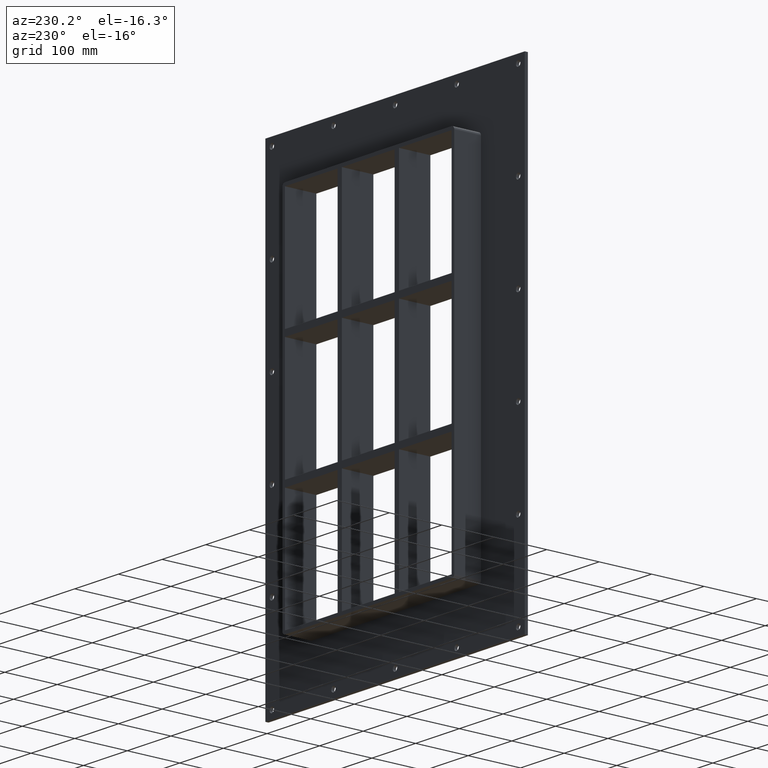
[diagram: clean part render]
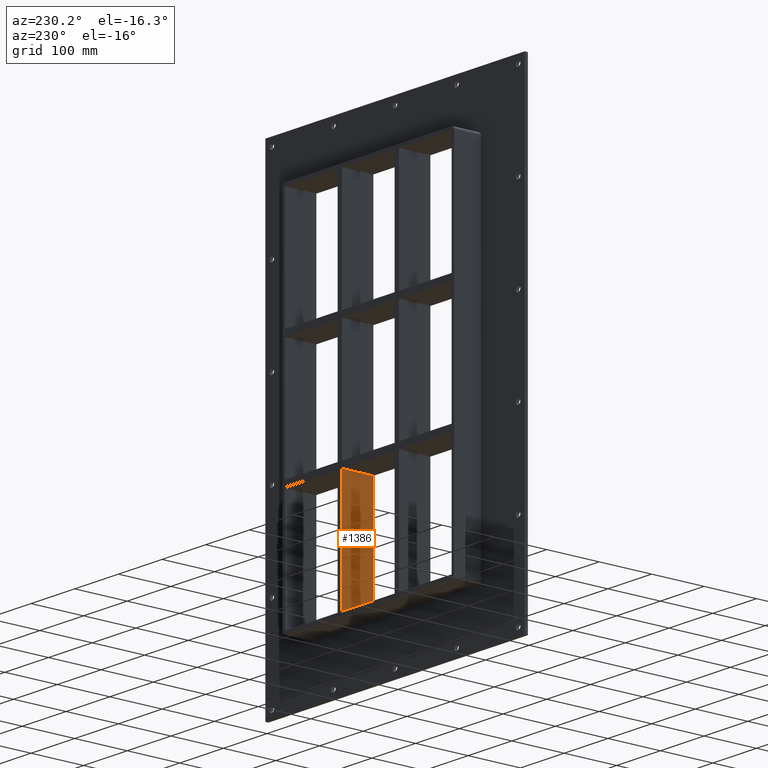
[diagram: same view with one face highlighted and labeled with its STEP entity id]
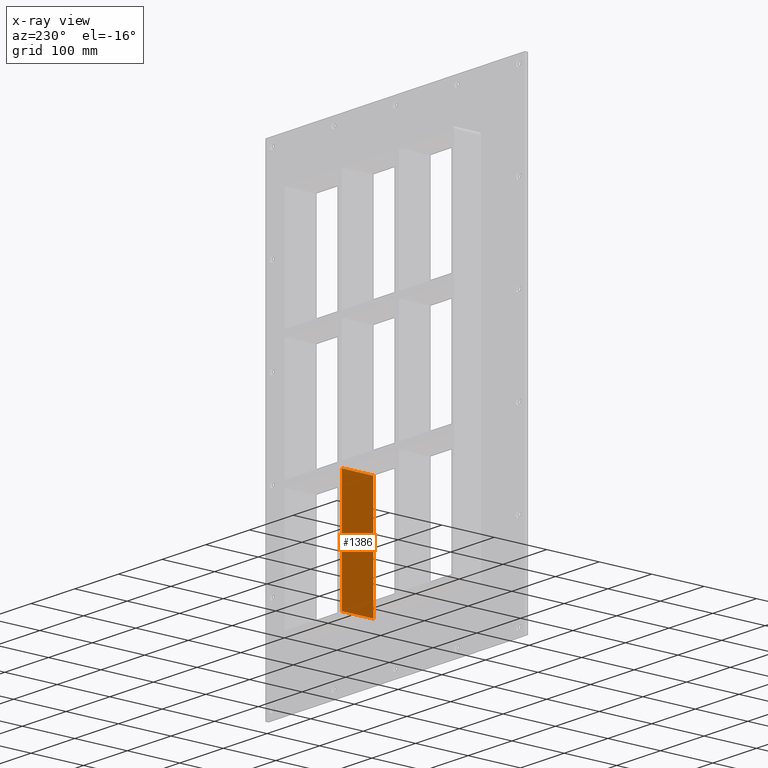
[diagram: x-ray of the same camera — body ghosted, the highlighted face saturated]
A machine part, auxiliary view. The second image highlights one B-rep face of the part: STEP entity #1386.
The next image is the same camera in x-ray: the body ghosted, the highlighted face saturated — about 0% of this face is hidden behind the body in this view.
In plain terms, the highlighted planar face has unit normal (-1, 0, 0).
Its self-contained STEP definition (entity closure, byte-faithful):
#1252=CARTESIAN_POINT('',(60.249999999998671,57.0,-339.00000000000006));
#1253=VERTEX_POINT('',#1252);
#1254=CARTESIAN_POINT('',(60.249999999998629,57.0,-121.00000000000932));
#1255=VERTEX_POINT('',#1254);
#1256=CARTESIAN_POINT('',(60.249999999998671,57.0,-339.00000000000006));
#1257=DIRECTION('',(0.0,0.0,1.0));
#1258=VECTOR('',#1257,217.99999999999073);
#1259=LINE('',#1256,#1258);
#1260=EDGE_CURVE('',#1253,#1255,#1259,.T.);
#1356=CARTESIAN_POINT('',(60.249999999998671,-3.0,-339.00000000000006));
#1357=DIRECTION('',(-1.0,0.0,0.0));
#1358=DIRECTION('',(0.0,0.0,1.0));
#1359=AXIS2_PLACEMENT_3D('',#1356,#1357,#1358);
#1360=PLANE('',#1359);
#1361=CARTESIAN_POINT('',(60.249999999998629,-3.0,-121.00000000000932));
#1362=VERTEX_POINT('',#1361);
#1363=CARTESIAN_POINT('',(60.249999999998636,57.0,-121.00000000000934));
#1364=DIRECTION('',(0.0,-1.0,0.0));
#1365=VECTOR('',#1364,60.0);
#1366=LINE('',#1363,#1365);
#1367=EDGE_CURVE('',#1255,#1362,#1366,.T.);
#1368=ORIENTED_EDGE('',*,*,#1367,.F.);
#1369=ORIENTED_EDGE('',*,*,#1260,.F.);
#1370=CARTESIAN_POINT('',(60.249999999998671,-3.0,-339.00000000000006));
#1371=VERTEX_POINT('',#1370);
#1372=CARTESIAN_POINT('',(60.249999999998671,-3.0,-339.00000000000006));
#1373=DIRECTION('',(0.0,1.0,0.0));
#1374=VECTOR('',#1373,60.000000000000007);
#1375=LINE('',#1372,#1374);
#1376=EDGE_CURVE('',#1371,#1253,#1375,.T.);
#1377=ORIENTED_EDGE('',*,*,#1376,.F.);
#1378=CARTESIAN_POINT('',(60.249999999998671,-3.0,-339.00000000000006));
#1379=DIRECTION('',(0.0,0.0,1.0));
#1380=VECTOR('',#1379,217.99999999999073);
#1381=LINE('',#1378,#1380);
#1382=EDGE_CURVE('',#1371,#1362,#1381,.T.);
#1383=ORIENTED_EDGE('',*,*,#1382,.T.);
#1384=EDGE_LOOP('',(#1368,#1369,#1377,#1383));
#1385=FACE_OUTER_BOUND('',#1384,.T.);
#1386=ADVANCED_FACE('',(#1385),#1360,.T.);